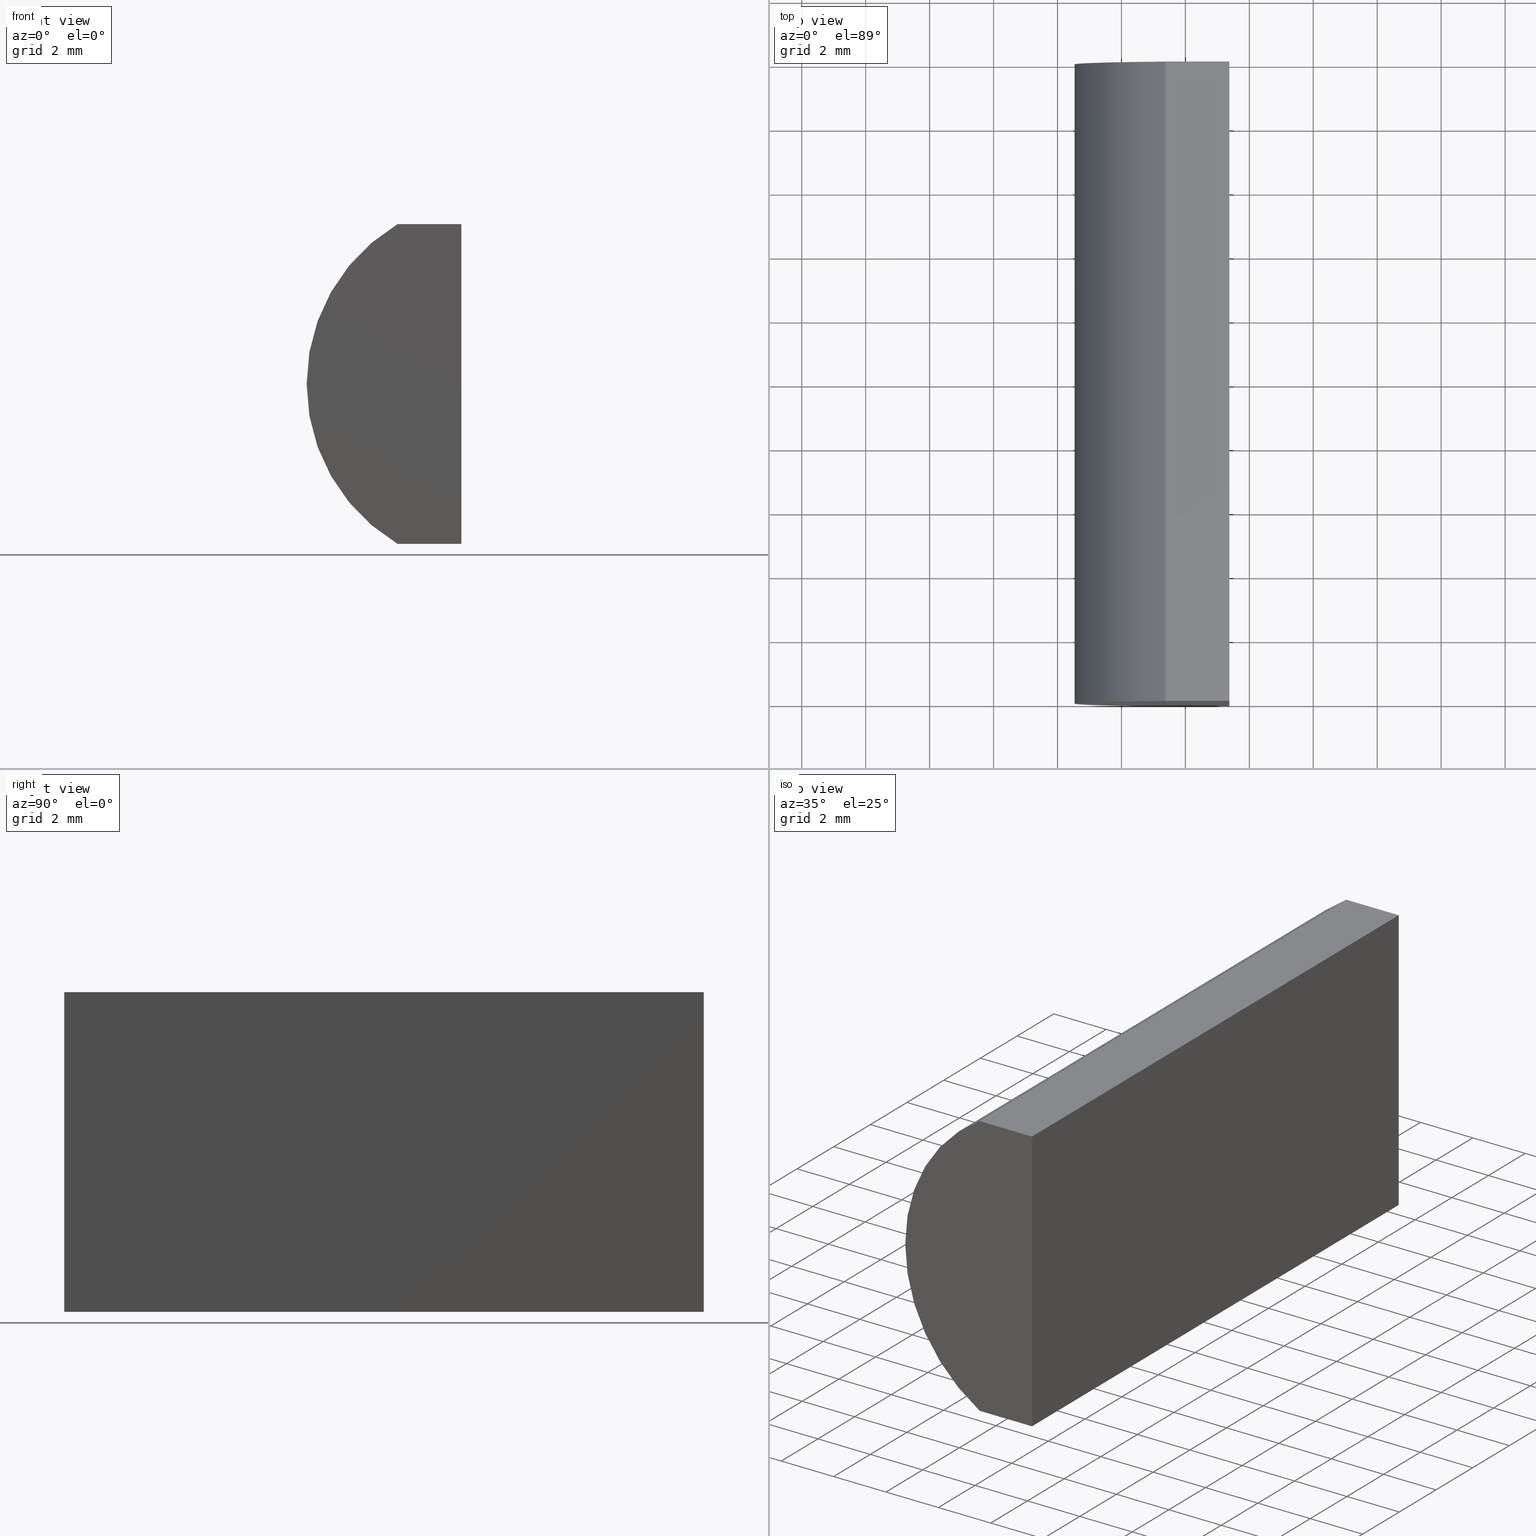
[diagram: canonical four-view strip — front | top / right | iso, engineering-drawing reading convention]
A machine part, canonical four-view strip (front | top / right | iso — engineering-drawing reading convention). The complete STEP part file that produces these views, byte-faithful:
ISO-10303-21;
HEADER;
FILE_DESCRIPTION (( 'STEP AP214' ),
    '1' );
FILE_NAME ('155279.STEP',
    '2019-06-26T01:32:52',
    ( 'user' ),
    ( '΢���й�' ),
    'SwSTEP 2.0',
    'SolidWorks 2016',
    '' );
FILE_SCHEMA (( 'AUTOMOTIVE_DESIGN' ));
ENDSEC;

DATA;
#1 = ORIENTED_EDGE ( 'NONE', *, *, #59, .F. ) ;
#2 = PRODUCT_RELATED_PRODUCT_CATEGORY ( 'part', '', ( #16 ) ) ;
#3 = EDGE_CURVE ( 'NONE', #152, #32, #126, .T. ) ;
#4 =( NAMED_UNIT ( * ) SI_UNIT ( $, .STERADIAN. ) SOLID_ANGLE_UNIT ( ) );
#5 = FACE_OUTER_BOUND ( 'NONE', #88, .T. ) ;
#6 =( LENGTH_UNIT ( ) NAMED_UNIT ( * ) SI_UNIT ( .MILLI., .METRE. ) );
#7 = VERTEX_POINT ( 'NONE', #202 ) ;
#8 = DIRECTION ( 'NONE',  ( 0.0000000000000000000, 0.0000000000000000000, -1.000000000000000000 ) ) ;
#9 = CARTESIAN_POINT ( 'NONE',  ( 1.376546919168830700, 20.00000000000000000, -5.000000000000000000 ) ) ;
#10 = CARTESIAN_POINT ( 'NONE',  ( 1.376546919168830700, 20.00000000000000000, 5.000000000000000000 ) ) ;
#11 = FILL_AREA_STYLE ('',( #122 ) ) ;
#12 = CARTESIAN_POINT ( 'NONE',  ( 4.355204334851265500, 20.00000000000000000, 4.286263797015675000E-017 ) ) ;
#13 = LINE ( 'NONE', #101, #135 ) ;
#14 = CARTESIAN_POINT ( 'NONE',  ( 4.355204334851265500, 20.00000000000000000, 4.286263797015675000E-017 ) ) ;
#15 =( GEOMETRIC_REPRESENTATION_CONTEXT ( 3 ) GLOBAL_UNCERTAINTY_ASSIGNED_CONTEXT ( ( #57 ) ) GLOBAL_UNIT_ASSIGNED_CONTEXT ( ( #6, #97, #193 ) ) REPRESENTATION_CONTEXT ( 'NONE', 'WORKASPACE' ) );
#16 = PRODUCT ( '155279', '155279', '', ( #177 ) ) ;
#17 = EDGE_CURVE ( 'NONE', #7, #19, #51, .T. ) ;
#18 = LINE ( 'NONE', #23, #172 ) ;
#19 = VERTEX_POINT ( 'NONE', #170 ) ;
#20 = ORIENTED_EDGE ( 'NONE', *, *, #44, .F. ) ;
#21 =( LENGTH_UNIT ( ) NAMED_UNIT ( * ) SI_UNIT ( .MILLI., .METRE. ) );
#22 = ORIENTED_EDGE ( 'NONE', *, *, #59, .T. ) ;
#23 = CARTESIAN_POINT ( 'NONE',  ( 3.375204334851278400, 20.00000000000000000, -5.000000000000083500 ) ) ;
#24 = AXIS2_PLACEMENT_3D ( 'NONE', #165, #69, #163 ) ;
#25 = CARTESIAN_POINT ( 'NONE',  ( 1.376546919168830700, 20.00000000000000000, -5.000000000000000000 ) ) ;
#26 = DIRECTION ( 'NONE',  ( 0.0000000000000000000, -0.0000000000000000000, 1.000000000000000000 ) ) ;
#27 = EDGE_CURVE ( 'NONE', #35, #7, #164, .T. ) ;
#28 = DIRECTION ( 'NONE',  ( 0.0000000000000000000, 1.000000000000000000, 0.0000000000000000000 ) ) ;
#29 = CARTESIAN_POINT ( 'NONE',  ( 1.376546919168830700, 20.00000000000000000, 5.000000000000000000 ) ) ;
#30 = VERTEX_POINT ( 'NONE', #201 ) ;
#31 = VECTOR ( 'NONE', #74, 1000.000000000000000 ) ;
#32 = VERTEX_POINT ( 'NONE', #29 ) ;
#33 = PRESENTATION_STYLE_ASSIGNMENT (( #199 ) ) ;
#34 = VECTOR ( 'NONE', #39, 1000.000000000000000 ) ;
#35 = VERTEX_POINT ( 'NONE', #184 ) ;
#36 = EDGE_CURVE ( 'NONE', #30, #129, #47, .T. ) ;
#37 = SURFACE_SIDE_STYLE ('',( #43 ) ) ;
#38 = VECTOR ( 'NONE', #143, 1000.000000000000000 ) ;
#39 = DIRECTION ( 'NONE',  ( -1.000000000000000000, -0.0000000000000000000, 4.166133034783005000E-014 ) ) ;
#40 = PLANE ( 'NONE',  #186 ) ;
#41 = DIRECTION ( 'NONE',  ( 0.0000000000000000000, -0.0000000000000000000, 1.000000000000000000 ) ) ;
#42 = CARTESIAN_POINT ( 'NONE',  ( 3.375204334851278400, 20.00000000000000000, -5.000000000000083500 ) ) ;
#43 = SURFACE_STYLE_FILL_AREA ( #151 ) ;
#44 = EDGE_CURVE ( 'NONE', #35, #144, #127, .T. ) ;
#45 = STYLED_ITEM ( 'NONE', ( #90 ), #91 ) ;
#46 = EDGE_LOOP ( 'NONE', ( #22, #114, #166, #61 ) ) ;
#47 = CIRCLE ( 'NONE', #108, 5.819999999999996700 ) ;
#48 = ORIENTED_EDGE ( 'NONE', *, *, #49, .F. ) ;
#49 = EDGE_CURVE ( 'NONE', #152, #30, #68, .T. ) ;
#50 = LINE ( 'NONE', #10, #53 ) ;
#51 = LINE ( 'NONE', #185, #38 ) ;
#52 = ADVANCED_FACE ( 'NONE', ( #111 ), #158, .T. ) ;
#53 = VECTOR ( 'NONE', #121, 1000.000000000000000 ) ;
#54 = FILL_AREA_STYLE_COLOUR ( '', #92 ) ;
#55 = ORIENTED_EDGE ( 'NONE', *, *, #27, .T. ) ;
#56 = DIRECTION ( 'NONE',  ( -1.000000000000000000, -0.0000000000000000000, 4.166133034783005000E-014 ) ) ;
#57 = UNCERTAINTY_MEASURE_WITH_UNIT (LENGTH_MEASURE( 1.000000000000000100E-005 ), #6, 'distance_accuracy_value', 'NONE');
#58 = PLANE ( 'NONE',  #147 ) ;
#59 = EDGE_CURVE ( 'NONE', #129, #7, #76, .T. ) ;
#60 = EDGE_LOOP ( 'NONE', ( #157, #89, #105, #77 ) ) ;
#61 = ORIENTED_EDGE ( 'NONE', *, *, #78, .T. ) ;
#62 = MANIFOLD_SOLID_BREP ( '͹̨-����1', #106 ) ;
#63 = ADVANCED_FACE ( 'NONE', ( #5 ), #58, .F. ) ;
#64 = EDGE_CURVE ( 'NONE', #32, #35, #13, .T. ) ;
#65 = PRODUCT_DEFINITION_SHAPE ( 'NONE', 'NONE',  #188 ) ;
#66 = ORIENTED_EDGE ( 'NONE', *, *, #85, .F. ) ;
#67 = APPLICATION_CONTEXT ( 'automotive_design' ) ;
#68 = LINE ( 'NONE', #169, #194 ) ;
#69 = DIRECTION ( 'NONE',  ( -1.000000000000000000, 0.0000000000000000000, 0.0000000000000000000 ) ) ;
#70 = SHAPE_DEFINITION_REPRESENTATION ( #65, #91 ) ;
#71 = CARTESIAN_POINT ( 'NONE',  ( 1.376546919168830700, 20.00000000000000000, -5.000000000000000000 ) ) ;
#72 =( NAMED_UNIT ( * ) SI_UNIT ( $, .STERADIAN. ) SOLID_ANGLE_UNIT ( ) );
#73 = DIRECTION ( 'NONE',  ( 1.000000000000000000, 0.0000000000000000000, 0.0000000000000000000 ) ) ;
#74 = DIRECTION ( 'NONE',  ( -0.0000000000000000000, -0.0000000000000000000, -1.000000000000000000 ) ) ;
#75 = ORIENTED_EDGE ( 'NONE', *, *, #200, .F. ) ;
#76 = LINE ( 'NONE', #168, #190 ) ;
#77 = ORIENTED_EDGE ( 'NONE', *, *, #49, .T. ) ;
#78 = EDGE_CURVE ( 'NONE', #32, #129, #50, .T. ) ;
#79 = DIRECTION ( 'NONE',  ( 1.000000000000000000, 0.0000000000000000000, 0.0000000000000000000 ) ) ;
#80 = CARTESIAN_POINT ( 'NONE',  ( 0.0000000000000000000, 0.0000000000000000000, 0.0000000000000000000 ) ) ;
#81 = DIRECTION ( 'NONE',  ( 4.166133034783005000E-014, -0.0000000000000000000, 1.000000000000000000 ) ) ;
#82 = CARTESIAN_POINT ( 'NONE',  ( 1.376546919168830700, 0.0000000000000000000, 5.000000000000000000 ) ) ;
#83 =( LENGTH_UNIT ( ) NAMED_UNIT ( * ) SI_UNIT ( .MILLI., .METRE. ) );
#84 = DIRECTION ( 'NONE',  ( -0.0000000000000000000, -1.000000000000000000, -0.0000000000000000000 ) ) ;
#85 = EDGE_CURVE ( 'NONE', #144, #152, #86, .T. ) ;
#86 = LINE ( 'NONE', #71, #176 ) ;
#87 = DIRECTION ( 'NONE',  ( 0.0000000000000000000, 1.000000000000000000, 0.0000000000000000000 ) ) ;
#88 = EDGE_LOOP ( 'NONE', ( #131, #187, #98, #1 ) ) ;
#89 = ORIENTED_EDGE ( 'NONE', *, *, #78, .F. ) ;
#90 = PRESENTATION_STYLE_ASSIGNMENT (( #136 ) ) ;
#91 = ADVANCED_BREP_SHAPE_REPRESENTATION ( '155279', ( #62, #175 ), #15 ) ;
#92 = COLOUR_RGB ( '',1.000000000000000000, 1.000000000000000000, 1.000000000000000000 ) ;
#93 = AXIS2_PLACEMENT_3D ( 'NONE', #14, #87, #155 ) ;
#94 = FACE_OUTER_BOUND ( 'NONE', #148, .T. ) ;
#95 = MECHANICAL_DESIGN_GEOMETRIC_PRESENTATION_REPRESENTATION (  '', ( #134 ), #110 ) ;
#96 = ORIENTED_EDGE ( 'NONE', *, *, #85, .T. ) ;
#97 =( NAMED_UNIT ( * ) PLANE_ANGLE_UNIT ( ) SI_UNIT ( $, .RADIAN. ) );
#98 = ORIENTED_EDGE ( 'NONE', *, *, #17, .F. ) ;
#99 = DIRECTION ( 'NONE',  ( -1.000000000000000000, 0.0000000000000000000, -0.0000000000000000000 ) ) ;
#100 = CARTESIAN_POINT ( 'NONE',  ( 3.375204334851278400, 20.00000000000000000, -5.000000000000083500 ) ) ;
#101 = CARTESIAN_POINT ( 'NONE',  ( 1.376546919168830700, 20.00000000000000000, 5.000000000000000000 ) ) ;
#102 = SURFACE_SIDE_STYLE ('',( #117 ) ) ;
#103 = DIRECTION ( 'NONE',  ( -0.0000000000000000000, -1.000000000000000000, -0.0000000000000000000 ) ) ;
#104 = DIRECTION ( 'NONE',  ( -0.0000000000000000000, -1.000000000000000000, -0.0000000000000000000 ) ) ;
#105 = ORIENTED_EDGE ( 'NONE', *, *, #3, .F. ) ;
#106 = CLOSED_SHELL ( 'NONE', ( #52, #174, #191, #132, #112, #63 ) ) ;
#107 = FACE_OUTER_BOUND ( 'NONE', #197, .T. ) ;
#108 = AXIS2_PLACEMENT_3D ( 'NONE', #141, #28, #123 ) ;
#109 = ORIENTED_EDGE ( 'NONE', *, *, #17, .T. ) ;
#110 =( GEOMETRIC_REPRESENTATION_CONTEXT ( 3 ) GLOBAL_UNCERTAINTY_ASSIGNED_CONTEXT ( ( #203 ) ) GLOBAL_UNIT_ASSIGNED_CONTEXT ( ( #83, #182, #72 ) ) REPRESENTATION_CONTEXT ( 'NONE', 'WORKASPACE' ) );
#111 = FACE_OUTER_BOUND ( 'NONE', #60, .T. ) ;
#112 = ADVANCED_FACE ( 'NONE', ( #142 ), #167, .T. ) ;
#113 = EDGE_LOOP ( 'NONE', ( #171, #150, #180, #96 ) ) ;
#114 = ORIENTED_EDGE ( 'NONE', *, *, #27, .F. ) ;
#115 =( NAMED_UNIT ( * ) PLANE_ANGLE_UNIT ( ) SI_UNIT ( $, .RADIAN. ) );
#116 = DIRECTION ( 'NONE',  ( -0.0000000000000000000, -1.000000000000000000, -0.0000000000000000000 ) ) ;
#117 = SURFACE_STYLE_FILL_AREA ( #11 ) ;
#118 = FACE_OUTER_BOUND ( 'NONE', #46, .T. ) ;
#119 = PLANE ( 'NONE',  #204 ) ;
#120 = CARTESIAN_POINT ( 'NONE',  ( 1.376546919168830700, 0.0000000000000000000, -5.000000000000000000 ) ) ;
#121 = DIRECTION ( 'NONE',  ( -0.0000000000000000000, -1.000000000000000000, -0.0000000000000000000 ) ) ;
#122 = FILL_AREA_STYLE_COLOUR ( '', #156 ) ;
#123 = DIRECTION ( 'NONE',  ( 0.0000000000000000000, 0.0000000000000000000, 1.000000000000000000 ) ) ;
#124 = PRESENTATION_LAYER_ASSIGNMENT (  '', '', ( #134 ) ) ;
#125 = CARTESIAN_POINT ( 'NONE',  ( 3.375204334851278400, 20.00000000000000000, 5.000000000000000000 ) ) ;
#126 = CIRCLE ( 'NONE', #93, 5.819999999999996700 ) ;
#127 = LINE ( 'NONE', #42, #31 ) ;
#128 = PRESENTATION_LAYER_ASSIGNMENT (  '', '', ( #45 ) ) ;
#129 = VERTEX_POINT ( 'NONE', #82 ) ;
#130 = VECTOR ( 'NONE', #104, 1000.000000000000000 ) ;
#131 = ORIENTED_EDGE ( 'NONE', *, *, #36, .F. ) ;
#132 = ADVANCED_FACE ( 'NONE', ( #94 ), #40, .F. ) ;
#133 = UNCERTAINTY_MEASURE_WITH_UNIT (LENGTH_MEASURE( 1.000000000000000100E-005 ), #21, 'distance_accuracy_value', 'NONE');
#134 = STYLED_ITEM ( 'NONE', ( #33 ), #62 ) ;
#135 = VECTOR ( 'NONE', #198, 1000.000000000000000 ) ;
#136 = SURFACE_STYLE_USAGE ( .BOTH. , #37 ) ;
#137 = CARTESIAN_POINT ( 'NONE',  ( 1.376546919168830700, 20.00000000000000000, 5.000000000000000000 ) ) ;
#138 = MECHANICAL_DESIGN_GEOMETRIC_PRESENTATION_REPRESENTATION (  '', ( #45 ), #149 ) ;
#139 = DIRECTION ( 'NONE',  ( 0.0000000000000000000, 1.000000000000000000, 0.0000000000000000000 ) ) ;
#140 = CARTESIAN_POINT ( 'NONE',  ( 4.355204334851265500, 0.0000000000000000000, 4.286263797015675000E-017 ) ) ;
#141 = CARTESIAN_POINT ( 'NONE',  ( 4.355204334851265500, 0.0000000000000000000, 4.286263797015675000E-017 ) ) ;
#142 = FACE_OUTER_BOUND ( 'NONE', #113, .T. ) ;
#143 = DIRECTION ( 'NONE',  ( -0.0000000000000000000, -0.0000000000000000000, -1.000000000000000000 ) ) ;
#144 = VERTEX_POINT ( 'NONE', #100 ) ;
#145 = EDGE_CURVE ( 'NONE', #19, #30, #159, .T. ) ;
#146 = AXIS2_PLACEMENT_3D ( 'NONE', #12, #84, #183 ) ;
#147 = AXIS2_PLACEMENT_3D ( 'NONE', #140, #154, #41 ) ;
#148 = EDGE_LOOP ( 'NONE', ( #178, #48, #66, #173 ) ) ;
#149 =( GEOMETRIC_REPRESENTATION_CONTEXT ( 3 ) GLOBAL_UNCERTAINTY_ASSIGNED_CONTEXT ( ( #133 ) ) GLOBAL_UNIT_ASSIGNED_CONTEXT ( ( #21, #115, #4 ) ) REPRESENTATION_CONTEXT ( 'NONE', 'WORKASPACE' ) );
#150 = ORIENTED_EDGE ( 'NONE', *, *, #64, .T. ) ;
#151 = FILL_AREA_STYLE ('',( #54 ) ) ;
#152 = VERTEX_POINT ( 'NONE', #25 ) ;
#153 = CARTESIAN_POINT ( 'NONE',  ( 4.355204334851265500, 20.00000000000000000, 4.286263797015675000E-017 ) ) ;
#154 = DIRECTION ( 'NONE',  ( 0.0000000000000000000, 1.000000000000000000, 0.0000000000000000000 ) ) ;
#155 = DIRECTION ( 'NONE',  ( 0.0000000000000000000, 0.0000000000000000000, 1.000000000000000000 ) ) ;
#156 = COLOUR_RGB ( '',1.000000000000000000, 1.000000000000000000, 1.000000000000000000 ) ;
#157 = ORIENTED_EDGE ( 'NONE', *, *, #36, .T. ) ;
#158 = CYLINDRICAL_SURFACE ( 'NONE', #146, 5.819999999999996700 ) ;
#159 = LINE ( 'NONE', #120, #34 ) ;
#160 = APPLICATION_PROTOCOL_DEFINITION ( 'draft international standard', 'automotive_design', 1998, #67 ) ;
#161 = APPLICATION_CONTEXT ( 'automotive_design' ) ;
#162 = AXIS2_PLACEMENT_3D ( 'NONE', #153, #139, #26 ) ;
#163 = DIRECTION ( 'NONE',  ( 0.0000000000000000000, 0.0000000000000000000, 1.000000000000000000 ) ) ;
#164 = LINE ( 'NONE', #125, #130 ) ;
#165 = CARTESIAN_POINT ( 'NONE',  ( 3.375204334851278400, 20.00000000000000000, -5.000000000000083500 ) ) ;
#166 = ORIENTED_EDGE ( 'NONE', *, *, #64, .F. ) ;
#167 = PLANE ( 'NONE',  #162 ) ;
#168 = CARTESIAN_POINT ( 'NONE',  ( 1.376546919168830700, 0.0000000000000000000, 5.000000000000000000 ) ) ;
#169 = CARTESIAN_POINT ( 'NONE',  ( 1.376546919168830700, 20.00000000000000000, -5.000000000000000000 ) ) ;
#170 = CARTESIAN_POINT ( 'NONE',  ( 3.375204334851278400, 0.0000000000000000000, -5.000000000000083500 ) ) ;
#171 = ORIENTED_EDGE ( 'NONE', *, *, #3, .T. ) ;
#172 = VECTOR ( 'NONE', #116, 1000.000000000000000 ) ;
#173 = ORIENTED_EDGE ( 'NONE', *, *, #200, .T. ) ;
#174 = ADVANCED_FACE ( 'NONE', ( #118 ), #119, .F. ) ;
#175 = AXIS2_PLACEMENT_3D ( 'NONE', #80, #192, #79 ) ;
#176 = VECTOR ( 'NONE', #56, 1000.000000000000000 ) ;
#177 = PRODUCT_CONTEXT ( 'NONE', #161, 'mechanical' ) ;
#178 = ORIENTED_EDGE ( 'NONE', *, *, #145, .T. ) ;
#179 = APPLICATION_PROTOCOL_DEFINITION ( 'draft international standard', 'automotive_design', 1998, #161 ) ;
#180 = ORIENTED_EDGE ( 'NONE', *, *, #44, .T. ) ;
#181 = DIRECTION ( 'NONE',  ( 1.000000000000000000, 0.0000000000000000000, -4.166133034783005000E-014 ) ) ;
#182 =( NAMED_UNIT ( * ) PLANE_ANGLE_UNIT ( ) SI_UNIT ( $, .RADIAN. ) );
#183 = DIRECTION ( 'NONE',  ( 0.0000000000000000000, 0.0000000000000000000, -1.000000000000000000 ) ) ;
#184 = CARTESIAN_POINT ( 'NONE',  ( 3.375204334851278400, 20.00000000000000000, 5.000000000000000000 ) ) ;
#185 = CARTESIAN_POINT ( 'NONE',  ( 3.375204334851278400, 0.0000000000000000000, -5.000000000000083500 ) ) ;
#186 = AXIS2_PLACEMENT_3D ( 'NONE', #9, #81, #181 ) ;
#187 = ORIENTED_EDGE ( 'NONE', *, *, #145, .F. ) ;
#188 = PRODUCT_DEFINITION ( 'δ֪', '', #196, #189 ) ;
#189 = PRODUCT_DEFINITION_CONTEXT ( 'detailed design', #67, 'design' ) ;
#190 = VECTOR ( 'NONE', #73, 1000.000000000000000 ) ;
#191 = ADVANCED_FACE ( 'NONE', ( #107 ), #195, .F. ) ;
#192 = DIRECTION ( 'NONE',  ( 0.0000000000000000000, 0.0000000000000000000, 1.000000000000000000 ) ) ;
#193 =( NAMED_UNIT ( * ) SI_UNIT ( $, .STERADIAN. ) SOLID_ANGLE_UNIT ( ) );
#194 = VECTOR ( 'NONE', #103, 1000.000000000000000 ) ;
#195 = PLANE ( 'NONE',  #24 ) ;
#196 = PRODUCT_DEFINITION_FORMATION_WITH_SPECIFIED_SOURCE ( '�κ�', '', #16, .NOT_KNOWN. ) ;
#197 = EDGE_LOOP ( 'NONE', ( #109, #75, #20, #55 ) ) ;
#198 = DIRECTION ( 'NONE',  ( 1.000000000000000000, 0.0000000000000000000, 0.0000000000000000000 ) ) ;
#199 = SURFACE_STYLE_USAGE ( .BOTH. , #102 ) ;
#200 = EDGE_CURVE ( 'NONE', #144, #19, #18, .T. ) ;
#201 = CARTESIAN_POINT ( 'NONE',  ( 1.376546919168830700, 0.0000000000000000000, -5.000000000000000000 ) ) ;
#202 = CARTESIAN_POINT ( 'NONE',  ( 3.375204334851278400, 0.0000000000000000000, 5.000000000000000000 ) ) ;
#203 = UNCERTAINTY_MEASURE_WITH_UNIT (LENGTH_MEASURE( 1.000000000000000100E-005 ), #83, 'distance_accuracy_value', 'NONE');
#204 = AXIS2_PLACEMENT_3D ( 'NONE', #137, #8, #99 ) ;
ENDSEC;
END-ISO-10303-21;
